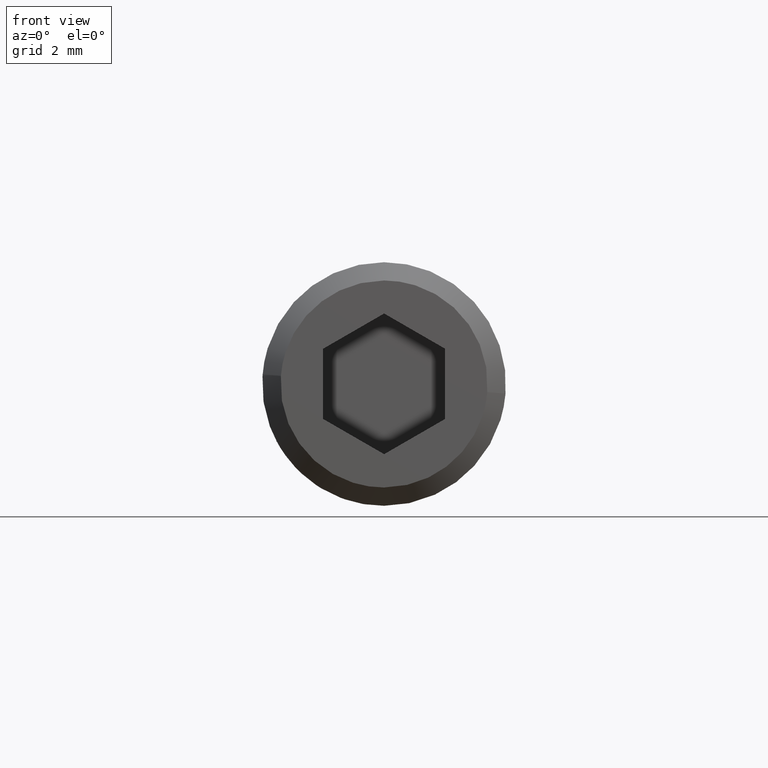
[diagram: clean part render]
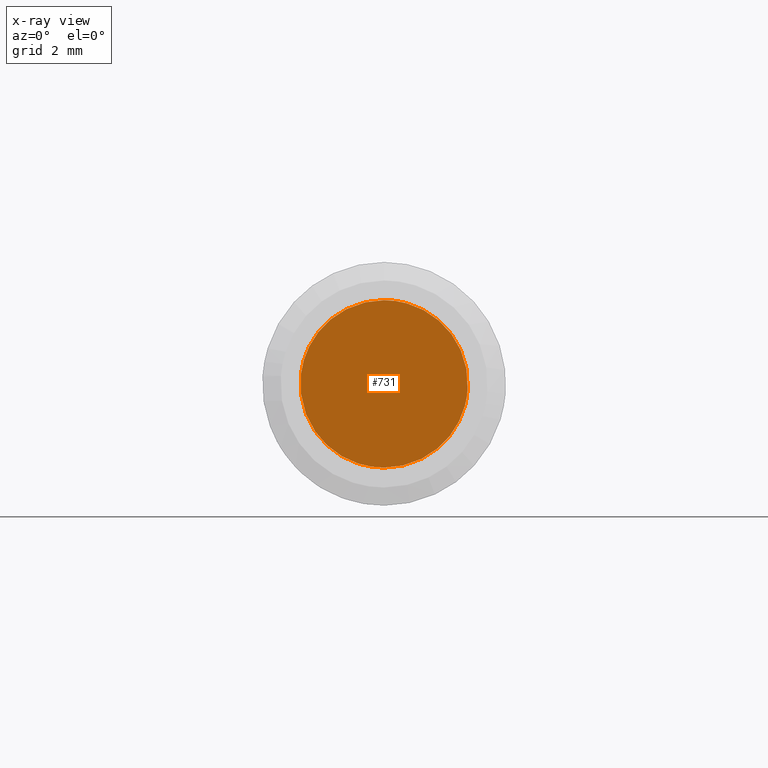
[diagram: x-ray — body ghosted, one internal face saturated and labeled with its STEP entity id]
A machine part, front view, then the same camera in x-ray: the body is ghosted and one INTERNAL B-rep face — a face not visible from any outside direction — is saturated and labeled: STEP entity #731.
In plain terms, the highlighted face is a freeform B-spline surface patch.
Its self-contained STEP definition (entity closure, byte-faithful):
#66=CARTESIAN_POINT('',(-2.730776770907558,-5.000000000000033,0.324589321216967));
#67=VERTEX_POINT('',#66);
#68=CARTESIAN_POINT('',(0.0,-5.0,-2.750000000000000));
#69=VERTEX_POINT('',#68);
#70=CARTESIAN_POINT('',(-2.730776770907559,-5.000000000000034,0.324589321216967));
#71=CARTESIAN_POINT('',(-2.750000000000001,-5.000000000000001,0.162863891499006));
#72=CARTESIAN_POINT('',(-2.750000000000000,-5.0,0.0));
#73=CARTESIAN_POINT('',(-2.750000000000000,-5.000000000000001,-2.750000000000000));
#74=CARTESIAN_POINT('',(0.0,-5.0,-2.750000000000000));
#82=(BOUNDED_CURVE()B_SPLINE_CURVE(2,(#70,#71,#72,#73,#74),.UNSPECIFIED.,.F.,.U.)B_SPLINE_CURVE_WITH_KNOTS((3,2,3),(0.229562772070619,0.250000000000000,0.500000000000000),.UNSPECIFIED.)CURVE()GEOMETRIC_REPRESENTATION_ITEM()RATIONAL_B_SPLINE_CURVE((0.956027339368690,0.976056298112558,1.0,0.707106781186548,1.0))REPRESENTATION_ITEM(''));
#83=EDGE_CURVE('',#67,#69,#82,.T.);
#85=CARTESIAN_POINT('',(2.744870880961206,-4.999999999999982,-0.167880454020225));
#86=VERTEX_POINT('',#85);
#87=CARTESIAN_POINT('',(0.0,-5.0,-2.750000000000000));
#88=CARTESIAN_POINT('',(2.586944544711403,-5.000000000000001,-2.750000000000000));
#89=CARTESIAN_POINT('',(2.744870880961206,-4.999999999999981,-0.167880454020225));
#97=(BOUNDED_CURVE()B_SPLINE_CURVE(2,(#87,#88,#89),.UNSPECIFIED.,.F.,.U.)B_SPLINE_CURVE_WITH_KNOTS((3,3),(0.500000000000000,0.739333152693633),.UNSPECIFIED.)CURVE()GEOMETRIC_REPRESENTATION_ITEM()RATIONAL_B_SPLINE_CURVE((1.0,0.719603770155162,0.976072449847712))REPRESENTATION_ITEM(''));
#98=EDGE_CURVE('',#69,#86,#97,.T.);
#169=CARTESIAN_POINT('',(0.0,-5.0,2.750000000000000));
#170=VERTEX_POINT('',#169);
#171=CARTESIAN_POINT('',(0.0,-5.0,2.750000000000000));
#172=CARTESIAN_POINT('',(-2.442484291539086,-5.0,2.749999999999999));
#173=CARTESIAN_POINT('',(-2.730776770907559,-5.000000000000034,0.324589321216967));
#181=(BOUNDED_CURVE()B_SPLINE_CURVE(2,(#171,#172,#173),.UNSPECIFIED.,.F.,.U.)B_SPLINE_CURVE_WITH_KNOTS((3,3),(0.0,0.229562772070619),.UNSPECIFIED.)CURVE()GEOMETRIC_REPRESENTATION_ITEM()RATIONAL_B_SPLINE_CURVE((1.0,0.731050483073990,0.956027339368690))REPRESENTATION_ITEM(''));
#182=EDGE_CURVE('',#170,#67,#181,.T.);
#216=CARTESIAN_POINT('',(2.744870880961206,-4.999999999999981,-0.167880454020225));
#217=CARTESIAN_POINT('',(2.750000000000000,-5.0,-0.084018579973439));
#218=CARTESIAN_POINT('',(2.750000000000000,-5.0,0.0));
#219=CARTESIAN_POINT('',(2.750000000000000,-5.000000000000001,2.750000000000000));
#220=CARTESIAN_POINT('',(0.0,-5.0,2.750000000000000));
#228=(BOUNDED_CURVE()B_SPLINE_CURVE(2,(#216,#217,#218,#219,#220),.UNSPECIFIED.,.F.,.U.)B_SPLINE_CURVE_WITH_KNOTS((3,2,3),(0.739333152693633,0.750000000000000,1.0),.UNSPECIFIED.)CURVE()GEOMETRIC_REPRESENTATION_ITEM()RATIONAL_B_SPLINE_CURVE((0.976072449847712,0.987503011031386,1.0,0.707106781186548,1.0))REPRESENTATION_ITEM(''));
#229=EDGE_CURVE('',#86,#170,#228,.T.);
#720=CARTESIAN_POINT('',(-3.024675127472638,-5.0,3.024724989339933));
#721=CARTESIAN_POINT('',(3.024658064152955,-5.0,3.024724989339933));
#722=CARTESIAN_POINT('',(-3.024675127472638,-5.0,-3.024725136861429));
#723=CARTESIAN_POINT('',(3.024658064152955,-5.0,-3.024725136861429));
#724=B_SPLINE_SURFACE_WITH_KNOTS('',1,1,((#720,#722),(#721,#723)),.UNSPECIFIED.,.F.,.F.,.U.,(2,2),(2,2),(0.0,6.049333191625593),(0.0,6.049450126201362),.UNSPECIFIED.);
#725=ORIENTED_EDGE('',*,*,#229,.F.);
#726=ORIENTED_EDGE('',*,*,#98,.F.);
#727=ORIENTED_EDGE('',*,*,#83,.F.);
#728=ORIENTED_EDGE('',*,*,#182,.F.);
#729=EDGE_LOOP('',(#725,#726,#727,#728));
#730=FACE_OUTER_BOUND('',#729,.T.);
#731=ADVANCED_FACE('',(#730),#724,.T.);